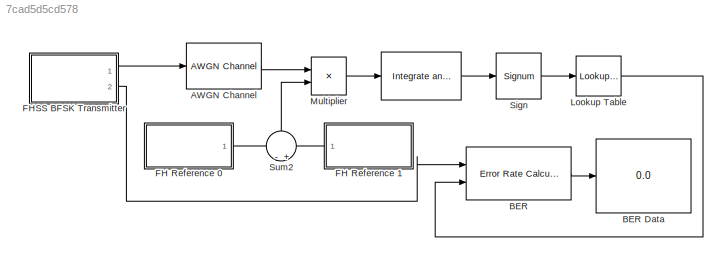
MODEL slx_7cad5d5cd578
KIND model
BLOCK [Reference]    REF=commfilt2/Integrate
and Dump
  LockScale = off
  Ports = [1, 1]
  SourceBlock = commfilt2/Integrate\nand Dump
  SourceType = Integrate and Dump
  accumFracLength = 30
  accumMode = Inherit via internal rule
  accumWordLength = 32
  nodump = off
  obssamples = 5000
  offsetsamples = 0
  outputFracLength = 30
  outputMode = Same as accumulator
  outputWordLength = 32
  overflowMode = off
  roundingMode = Floor
BLOCK [Reference] AWGN Channel  REF=commchan3/AWGN
Channel
  EbNodB = 50
  EsNodB = 10
  InputProcessing = Inherited (this choice will be removed - see release notes)
  Ports = [1, 1]
  Ps = 25
  SNRdB = 12
  SourceBlock = commchan3/AWGN\nChannel
  SourceType = AWGN Channel
  Tsym = 1e-3
  UserDataPersistent = on
  bitsPerSym = 1
  noiseMode = Signal to noise ratio  (Eb/No)
  seed = randseed
  variance = 0
BLOCK [Reference] BER  REF=commsink2/Error Rate
Calculation
  N = 2
  PMode = Port
  Ports = [2, 1]
  RsMode2 = off
  SourceBlock = commsink2/Error Rate\nCalculation
  SourceType = Error Rate Calculation
  WsName = ErrorVec
  cp_mode = Entire frame
  maxBits = 1e6
  numErr = 100
  st_delay = 0
  stop = off
  subframe = []
BLOCK [Display] BER Data
  Decimation = 1
  Format = long
  Ports = [1]
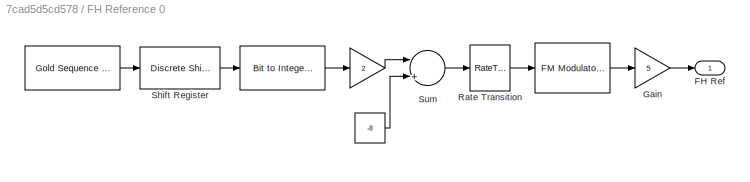
BLOCK [SubSystem] FH Reference 0
  Ports = [0, 1]
  RequestExecContextInheritance = off
BLOCK [Reference] FH Reference 0/    REF=commutil2/Bit to Integer
Converter
  Ports = [1, 1]
  SourceBlock = commutil2/Bit to Integer\nConverter
  SourceType = Bit to Integer Converter
  bitOrder = MSB first
  nbits = 3
  outDtype = Inherit via internal rule
  outDtypeSigned = Inherit via internal rule
  signedOutputValues = Unsigned
BLOCK [Gain] FH Reference 0/   
  Gain = 2
  OutDataTypeStr = Inherit: Inherit via internal rule
  ParamDataTypeStr = Inherit: Inherit via internal rule
  SaturateOnIntegerOverflow = off
BLOCK [Constant] FH Reference 0/    
  Value = -8
BLOCK [Reference] FH Reference 0/          REF=commanapbnd3/FM
Modulator
Passband
  Fc = 100000
  Kc = 1000
  Ph = 0
  Ports = [1, 1]
  SourceBlock = commanapbnd3/FM\nModulator\nPassband
  SourceType = FM Modulator Passband
BLOCK [Reference] FH Reference 0/             REF=commseqgen2/Gold Sequence
Generator
  Ports = [0, 1]
  SourceBlock = commseqgen2/Gold Sequence\nGenerator
  SourceType = Gold Sequence Generator
  frameBased = off
  genPoly1 = [1 0 0 1 0 1]
  genPoly2 = [1 1 1 1 0 1]
  index = 0
  iniState1 = [1 1 1 0 1]
  iniState2 = [1 0 0 0 1]
  maxOutSize = [10 1]
  maxOutSizeMode = Dialog parameter
  outDataType = double
  outVarSiz = off
  reset = off
  sampPerFrame = 1
  shift = 0
  ts = 5e-5
BLOCK [Outport] FH Reference 0/FH Ref
  IconDisplay = Port number
BLOCK [Gain] FH Reference 0/Gain
  Gain = 5
  OutDataTypeStr = Inherit: Inherit via internal rule
  ParamDataTypeStr = Inherit: Inherit via internal rule
  SaturateOnIntegerOverflow = off
BLOCK [RateTransition] FH Reference 0/Rate Transition
  OutPortSampleTime = 2e-7
BLOCK [Reference] FH Reference 0/Shift Register  REF=powerlib_meascontrol/Additional Components/Discrete
Shift Register
  InitialValue = 0
  NSamples = 3
  Ports = [1, 1]
  SourceBlock = powerlib_meascontrol/Additional Components/Discrete\nShift Register
  SourceType = Discrete Shift Register
  Ts = 5e-5
BLOCK [Sum] FH Reference 0/Sum
  InputSameDT = off
  Inputs = |++
  OutDataTypeStr = Inherit: Inherit via internal rule
  Ports = [2, 1]
  SaturateOnIntegerOverflow = off
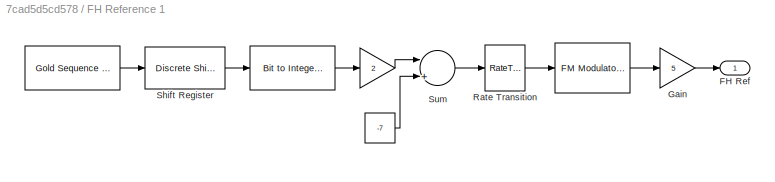
BLOCK [SubSystem] FH Reference 1
  Ports = [0, 1]
  RequestExecContextInheritance = off
BLOCK [Reference] FH Reference 1/    REF=commutil2/Bit to Integer
Converter
  Ports = [1, 1]
  SourceBlock = commutil2/Bit to Integer\nConverter
  SourceType = Bit to Integer Converter
  bitOrder = MSB first
  nbits = 3
  outDtype = Inherit via internal rule
  outDtypeSigned = Inherit via internal rule
  signedOutputValues = Unsigned
BLOCK [Gain] FH Reference 1/   
  Gain = 2
  OutDataTypeStr = Inherit: Inherit via internal rule
  ParamDataTypeStr = Inherit: Inherit via internal rule
  SaturateOnIntegerOverflow = off
BLOCK [Constant] FH Reference 1/    
  Value = -7
BLOCK [Reference] FH Reference 1/          REF=commanapbnd3/FM
Modulator
Passband
  Fc = 100000
  Kc = 1000
  Ph = 0
  Ports = [1, 1]
  SourceBlock = commanapbnd3/FM\nModulator\nPassband
  SourceType = FM Modulator Passband
BLOCK [Reference] FH Reference 1/             REF=commseqgen2/Gold Sequence
Generator
  Ports = [0, 1]
  SourceBlock = commseqgen2/Gold Sequence\nGenerator
  SourceType = Gold Sequence Generator
  frameBased = off
  genPoly1 = [1 0 0 1 0 1]
  genPoly2 = [1 1 1 1 0 1]
  index = 0
  iniState1 = [1 1 1 0 1]
  iniState2 = [1 0 0 0 1]
  maxOutSize = [10 1]
  maxOutSizeMode = Dialog parameter
  outDataType = double
  outVarSiz = off
  reset = off
  sampPerFrame = 1
  shift = 0
  ts = 5e-5
BLOCK [Outport] FH Reference 1/FH Ref
  IconDisplay = Port number
BLOCK [Gain] FH Reference 1/Gain
  Gain = 5
  OutDataTypeStr = Inherit: Inherit via internal rule
  ParamDataTypeStr = Inherit: Inherit via internal rule
  SaturateOnIntegerOverflow = off
BLOCK [RateTransition] FH Reference 1/Rate Transition
  OutPortSampleTime = 2e-7
BLOCK [Reference] FH Reference 1/Shift Register  REF=powerlib_meascontrol/Additional Components/Discrete
Shift Register
  InitialValue = 0
  NSamples = 3
  Ports = [1, 1]
  SourceBlock = powerlib_meascontrol/Additional Components/Discrete\nShift Register
  SourceType = Discrete Shift Register
  Ts = 5e-5
BLOCK [Sum] FH Reference 1/Sum
  InputSameDT = off
  Inputs = |++
  OutDataTypeStr = Inherit: Inherit via internal rule
  Ports = [2, 1]
  SaturateOnIntegerOverflow = off
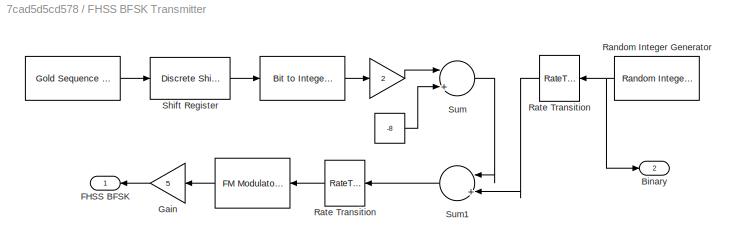
BLOCK [SubSystem] FHSS BFSK Transmitter
  Ports = [0, 2]
  RequestExecContextInheritance = off
BLOCK [Reference] FHSS BFSK Transmitter/   REF=commseqgen2/Gold Sequence
Generator
  Ports = [0, 1]
  SourceBlock = commseqgen2/Gold Sequence\nGenerator
  SourceType = Gold Sequence Generator
  frameBased = off
  genPoly1 = [1 0 0 1 0 1]
  genPoly2 = [1 1 1 1 0 1]
  index = 0
  iniState1 = [1 1 1 0 1]
  iniState2 = [1 0 0 0 1]
  maxOutSize = [10 1]
  maxOutSizeMode = Dialog parameter
  outDataType = double
  outVarSiz = off
  reset = off
  sampPerFrame = 1
  shift = 0
  ts = 5e-5
BLOCK [Reference] FHSS BFSK Transmitter/    REF=commutil2/Bit to Integer
Converter
  Ports = [1, 1]
  SourceBlock = commutil2/Bit to Integer\nConverter
  SourceType = Bit to Integer Converter
  bitOrder = MSB first
  nbits = 3
  outDtype = Inherit via internal rule
  outDtypeSigned = Inherit via internal rule
  signedOutputValues = Unsigned
BLOCK [Gain] FHSS BFSK Transmitter/   
  Gain = 2
  OutDataTypeStr = Inherit: Inherit via internal rule
  ParamDataTypeStr = Inherit: Inherit via internal rule
  SaturateOnIntegerOverflow = off
BLOCK [Constant] FHSS BFSK Transmitter/    
  Value = -8
BLOCK [Reference] FHSS BFSK Transmitter/          REF=commanapbnd3/FM
Modulator
Passband
  Fc = 100000
  Kc = 1000
  Ph = 0
  Ports = [1, 1]
  SourceBlock = commanapbnd3/FM\nModulator\nPassband
  SourceType = FM Modulator Passband
BLOCK [Outport] FHSS BFSK Transmitter/Binary
  IconDisplay = Port number
  Port = 2
BLOCK [Outport] FHSS BFSK Transmitter/FHSS BFSK
  IconDisplay = Port number
BLOCK [Gain] FHSS BFSK Transmitter/Gain
  Gain = 5
  OutDataTypeStr = Inherit: Inherit via internal rule
  ParamDataTypeStr = Inherit: Inherit via internal rule
  SaturateOnIntegerOverflow = off
BLOCK [Reference] FHSS BFSK Transmitter/Random Integer Generator  REF=commrandsrc2/Random Integer
Generator
  Ports = [0, 1]
  SourceBlock = commrandsrc2/Random Integer\nGenerator
  SourceType = Random Integer Generator
  Ts = 1e-3
  frameBased = off
  mul = 2
  orient = on
  outDataType = double
  sampPerFrame = 50
  seed = randseed
BLOCK [RateTransition] FHSS BFSK Transmitter/Rate Transition
  OutPortSampleTime = 5e-5
BLOCK [Reference] FHSS BFSK Transmitter/Shift Register  REF=powerlib_meascontrol/Additional Components/Discrete
Shift Register
  InitialValue = 0
  NSamples = 3
  Ports = [1, 1]
  SourceBlock = powerlib_meascontrol/Additional Components/Discrete\nShift Register
  SourceType = Discrete Shift Register
  Ts = 5e-5
BLOCK [Sum] FHSS BFSK Transmitter/Sum
  InputSameDT = off
  Inputs = |++
  OutDataTypeStr = Inherit: Inherit via internal rule
  Ports = [2, 1]
  SaturateOnIntegerOverflow = off
BLOCK [Sum] FHSS BFSK Transmitter/Sum1
  InputSameDT = off
  Inputs = |++
  OutDataTypeStr = Inherit: Inherit via internal rule
  Ports = [2, 1]
  SaturateOnIntegerOverflow = off
BLOCK [Lookup_n-D] Lookup Table
  BreakpointsForDimension1 = [-1, 0, 1]
  BreakpointsForDimension3 = [5, 7]
  InternalRulePriority = Speed
  NumberOfTableDimensions = 1
  Ports = [1, 1]
  RndMeth = Simplest
  Table = [0, 0, 1]
BLOCK [Product] Multiplier
  InputSameDT = off
  OutDataTypeStr = Inherit: Inherit via internal rule
  Ports = [2, 1]
  SaturateOnIntegerOverflow = off
BLOCK [Signum] Sign
BLOCK [Sum] Sum2
  IconShape = round
  InputSameDT = off
  Inputs = -+
  OutDataTypeStr = Inherit: Inherit via internal rule
  Ports = [2, 1]
  SaturateOnIntegerOverflow = off
LINE  :1 -> Sign:1
LINE AWGN Channel:1 -> Multiplier:1
LINE BER:1 -> BER Data:1
LINE FH Reference 0/           :1 -> FH Reference 0/Shift Register:1
LINE FH Reference 0/        :1 -> FH Reference 0/Gain:1
LINE FH Reference 0/    :1 -> FH Reference 0/Sum:2
LINE FH Reference 0/   :1 -> FH Reference 0/Sum:1
LINE FH Reference 0/  :1 -> FH Reference 0/   :1
LINE FH Reference 0/Gain:1 -> FH Reference 0/FH Ref:1
LINE FH Reference 0/Rate Transition:1 -> FH Reference 0/        :1
LINE FH Reference 0/Shift Register:1 -> FH Reference 0/  :1
LINE FH Reference 0/Sum:1 -> FH Reference 0/Rate Transition:1
LINE FH Reference 0:1 -> Sum2:1
LINE FH Reference 1/           :1 -> FH Reference 1/Shift Register:1
LINE FH Reference 1/        :1 -> FH Reference 1/Gain:1
LINE FH Reference 1/    :1 -> FH Reference 1/Sum:2
LINE FH Reference 1/   :1 -> FH Reference 1/Sum:1
LINE FH Reference 1/  :1 -> FH Reference 1/   :1
LINE FH Reference 1/Gain:1 -> FH Reference 1/FH Ref:1
LINE FH Reference 1/Rate Transition:1 -> FH Reference 1/        :1
LINE FH Reference 1/Shift Register:1 -> FH Reference 1/  :1
LINE FH Reference 1/Sum:1 -> FH Reference 1/Rate Transition:1
LINE FH Reference 1:1 -> Sum2:2
LINE FHSS BFSK Transmitter/        :1 -> FHSS BFSK Transmitter/Gain:1
LINE FHSS BFSK Transmitter/    :1 -> FHSS BFSK Transmitter/Sum:2
LINE FHSS BFSK Transmitter/   :1 -> FHSS BFSK Transmitter/Sum:1
LINE FHSS BFSK Transmitter/  :1 -> FHSS BFSK Transmitter/   :1
LINE FHSS BFSK Transmitter/ :1 -> FHSS BFSK Transmitter/Shift Register:1
LINE FHSS BFSK Transmitter/Gain:1 -> FHSS BFSK Transmitter/FHSS BFSK:1
NET FHSS BFSK Transmitter/Random Integer Generator:1 -> FHSS BFSK Transmitter/Binary:1, FHSS BFSK Transmitter/Rate Transition:1
NET FHSS BFSK Transmitter/Rate Transition:1 -> FHSS BFSK Transmitter/        :1, FHSS BFSK Transmitter/Sum1:2
LINE FHSS BFSK Transmitter/Shift Register:1 -> FHSS BFSK Transmitter/  :1
LINE FHSS BFSK Transmitter/Sum1:1 -> FHSS BFSK Transmitter/Rate Transition:1
LINE FHSS BFSK Transmitter/Sum:1 -> FHSS BFSK Transmitter/Sum1:1
LINE FHSS BFSK Transmitter:1 -> AWGN Channel:1
LINE FHSS BFSK Transmitter:2 -> BER:1
LINE Lookup Table:1 -> BER:2
LINE Multiplier:1 ->  :1
LINE Sign:1 -> Lookup Table:1
LINE Sum2:1 -> Multiplier:2
note: NET lines group one-source signal fan-out (src -> all destinations, sorted); 1:1 wires keep LINE
